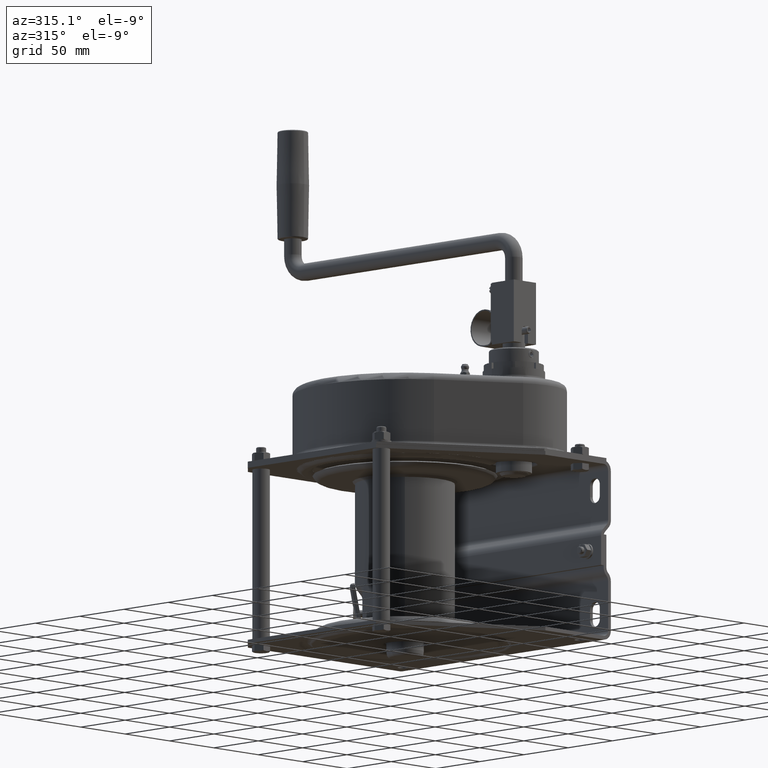
[diagram: clean part render]
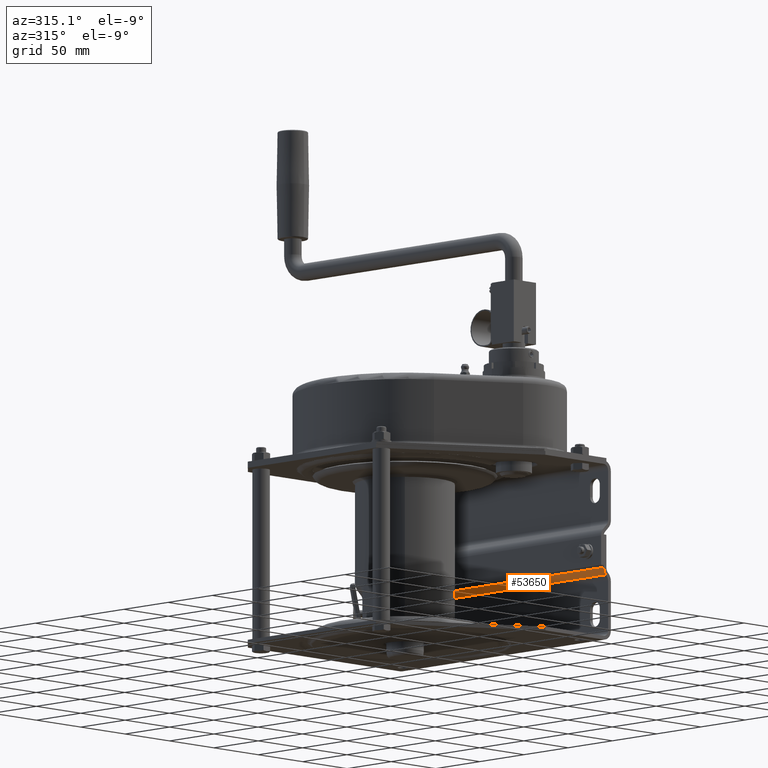
[diagram: same view with one face highlighted and labeled with its STEP entity id]
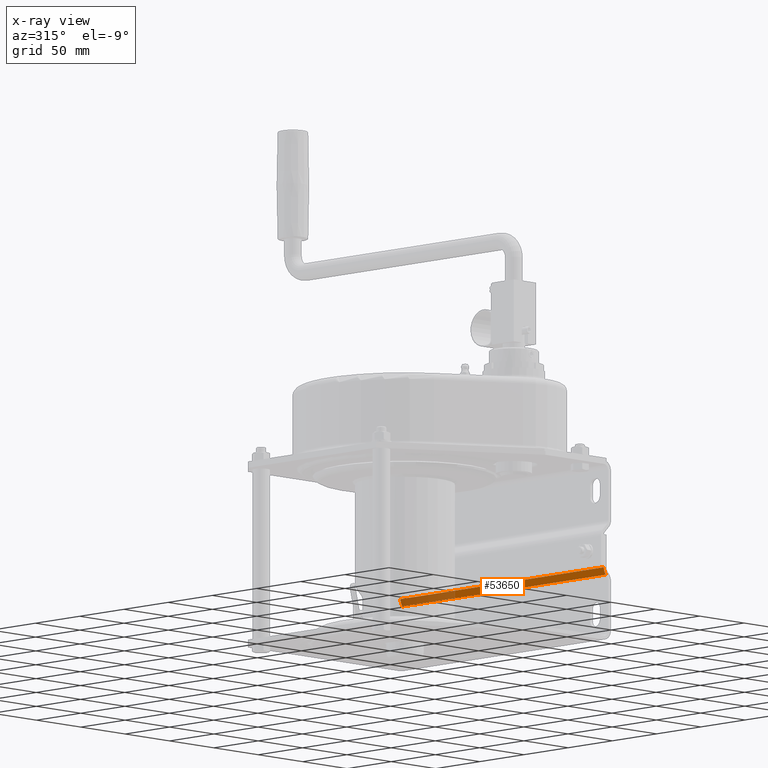
[diagram: x-ray of the same camera — body ghosted, the highlighted face saturated]
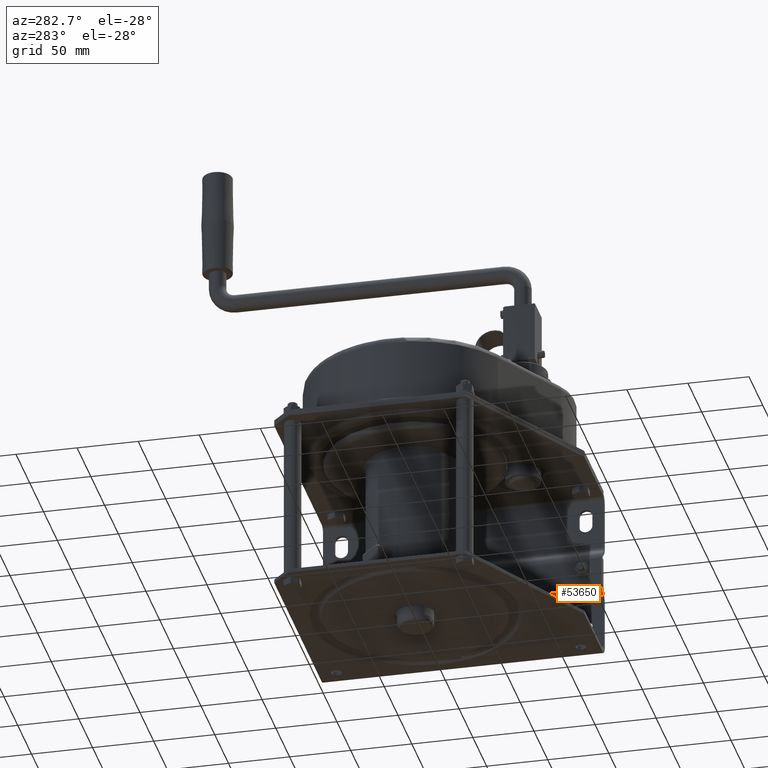
[diagram: same view with one face highlighted and labeled with its STEP entity id]
A machine part, auxiliary view. The second image highlights one B-rep face of the part: STEP entity #53650.
The next image is the same camera in x-ray: the body ghosted, the highlighted face saturated — about 26% of this face is hidden behind the body in this view.
A second angle (auxiliary view) of the same face is appended — the face is thin or edge-on in the first view.
In plain terms, the highlighted cylindrical surface (edge-blend (fillet) strip) has radius 8 mm, axis along (0, -1, 0).
Its self-contained STEP definition (entity closure, byte-faithful):
#46620=CARTESIAN_POINT('',(-94.3431457505076,52.6568542494924,-132.5));
#46630=VERTEX_POINT('',#46620);
#46800=CARTESIAN_POINT('',(-94.3431457505076,52.6568542494924,97.5));
#46810=VERTEX_POINT('',#46800);
#46840=CARTESIAN_POINT('',(-94.3431457505076,52.6568542494924,
-107.281534200716));
#46850=DIRECTION('',(0.,0.,1.));
#46860=VECTOR('',#46850,1.);
#46870=LINE('',#46840,#46860);
#46880=EDGE_CURVE('',#46630,#46810,#46870,.T.);
#50380=CARTESIAN_POINT('',(-92.,58.3137084989848,97.5));
#50390=VERTEX_POINT('',#50380);
#50420=CARTESIAN_POINT('',(-100.,58.3137084989848,97.5));
#50430=DIRECTION('',(0.,0.,1.));
#50440=DIRECTION('',(0.707106781186548,-0.707106781186548,0.));
#50450=AXIS2_PLACEMENT_3D('',#50420,#50430,#50440);
#50460=CIRCLE('',#50450,7.99999999999998);
#50470=EDGE_CURVE('',#46810,#50390,#50460,.T.);
#53410=CARTESIAN_POINT('',(-100.,58.3137084989848,-132.5));
#53420=DIRECTION('',(0.,0.,-1.));
#53430=DIRECTION('',(1.,0.,0.));
#53440=AXIS2_PLACEMENT_3D('',#53410,#53420,#53430);
#53450=CYLINDRICAL_SURFACE('',#53440,7.99999999999998);
#53460=ORIENTED_EDGE('',*,*,#50470,.F.);
#53470=CARTESIAN_POINT('',(-92.,58.3137084989848,-107.281534200716));
#53480=DIRECTION('',(0.,0.,1.));
#53490=VECTOR('',#53480,1.);
#53500=LINE('',#53470,#53490);
#53510=CARTESIAN_POINT('',(-92.,58.3137084989848,-132.5));
#53520=VERTEX_POINT('',#53510);
#53530=EDGE_CURVE('',#53520,#50390,#53500,.T.);
#53540=ORIENTED_EDGE('',*,*,#53530,.T.);
#53550=CARTESIAN_POINT('',(-100.,58.3137084989848,-132.5));
#53560=DIRECTION('',(0.,0.,1.));
#53570=DIRECTION('',(0.707106781186548,-0.707106781186548,0.));
#53580=AXIS2_PLACEMENT_3D('',#53550,#53560,#53570);
#53590=CIRCLE('',#53580,7.99999999999998);
#53600=EDGE_CURVE('',#46630,#53520,#53590,.T.);
#53610=ORIENTED_EDGE('',*,*,#53600,.T.);
#53620=ORIENTED_EDGE('',*,*,#46880,.F.);
#53630=EDGE_LOOP('',(#53620,#53610,#53540,#53460));
#53640=FACE_OUTER_BOUND('',#53630,.T.);
#53650=ADVANCED_FACE('',(#53640),#53450,.T.);